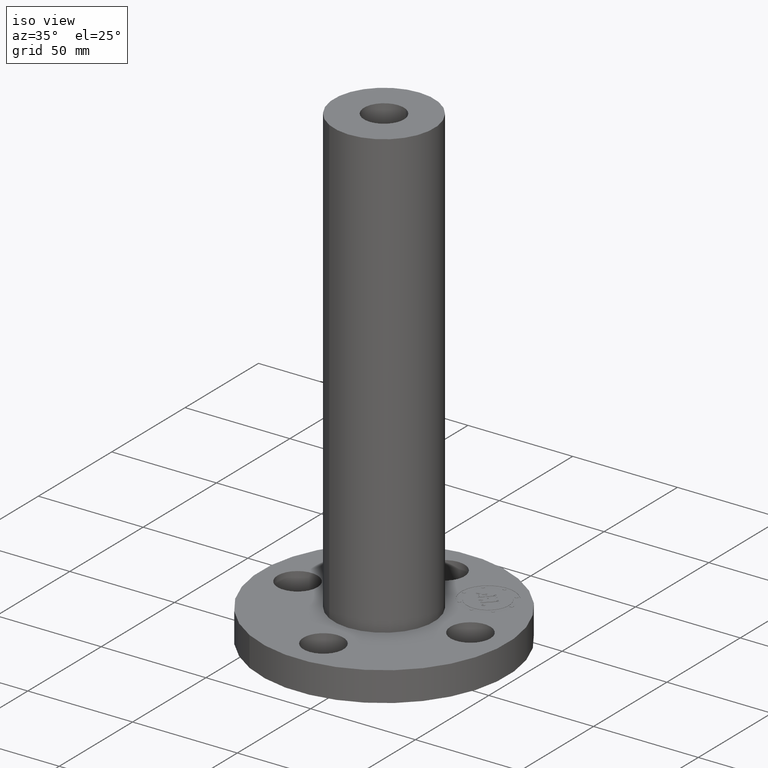
[diagram: clean part render]
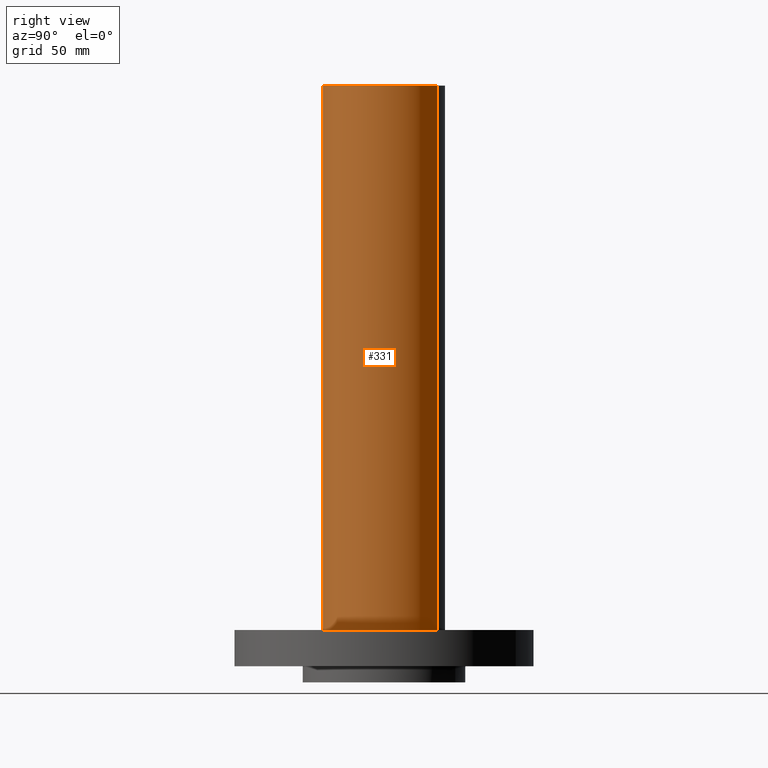
[diagram: tour spotlight — one face highlighted and labeled with its STEP entity id]
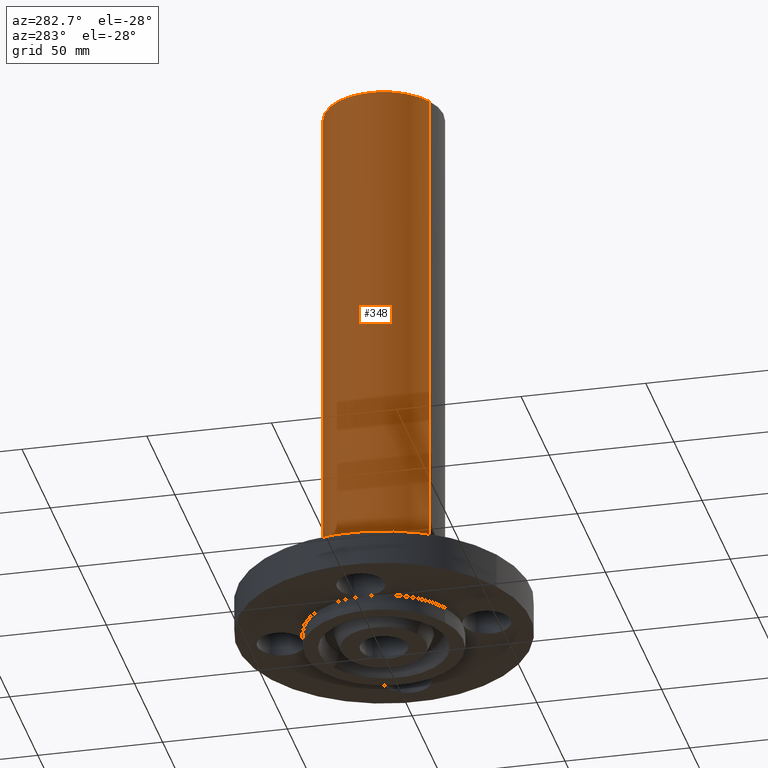
[diagram: tour spotlight — one face highlighted and labeled with its STEP entity id]
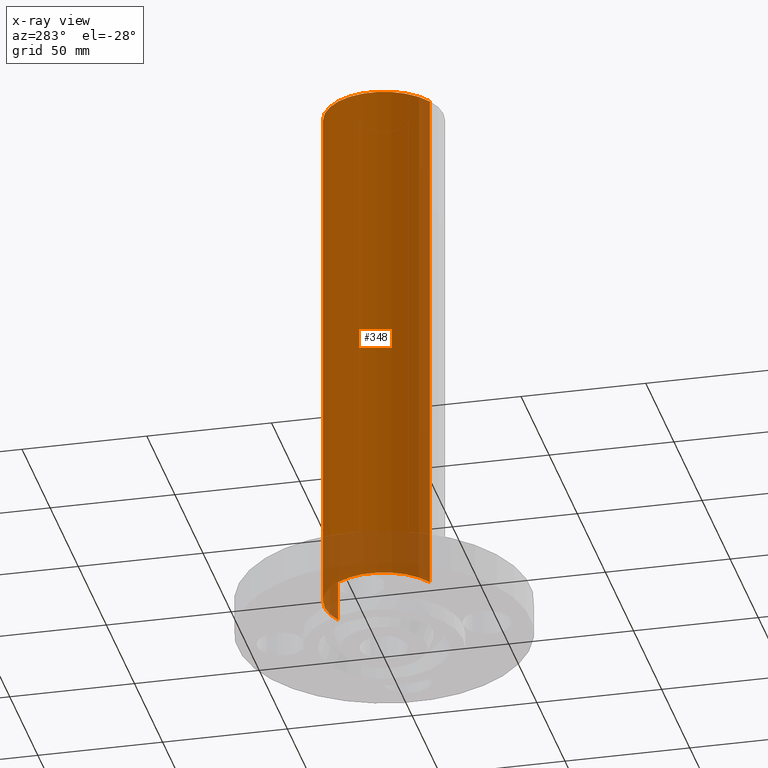
[diagram: x-ray of the same camera — body ghosted, this tour face saturated]
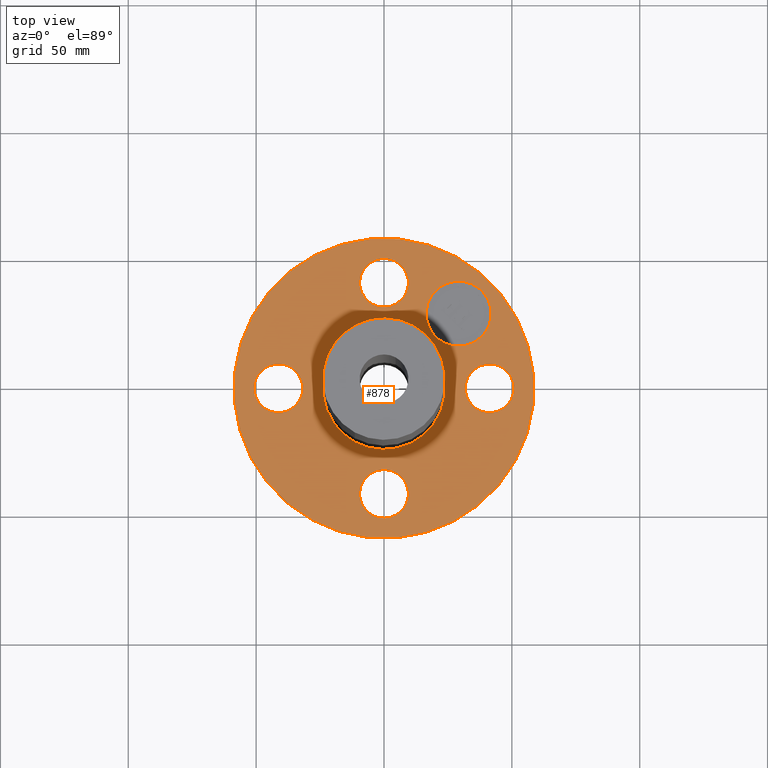
[diagram: tour spotlight — one face highlighted and labeled with its STEP entity id]
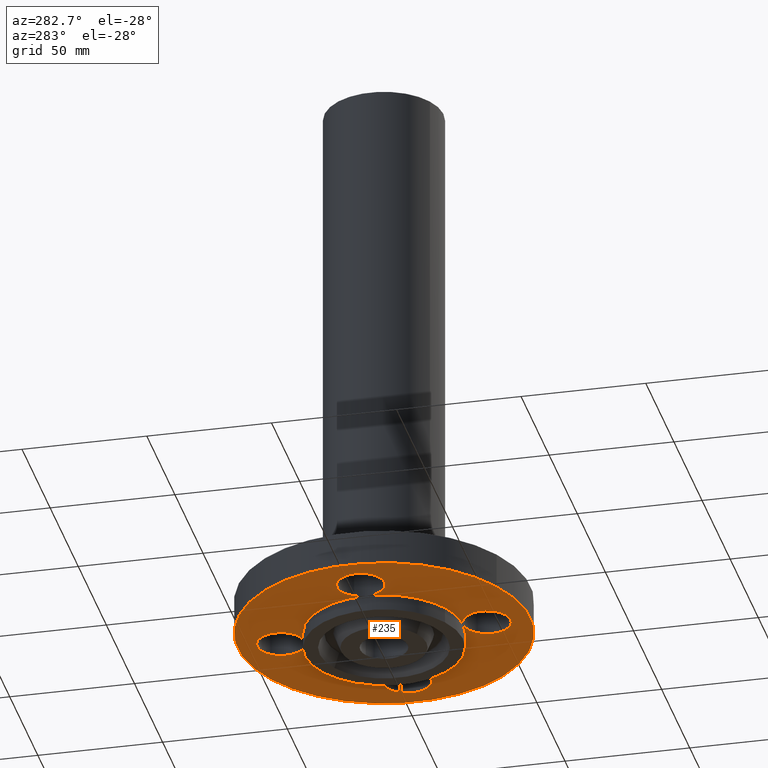
[diagram: tour spotlight — one face highlighted and labeled with its STEP entity id]
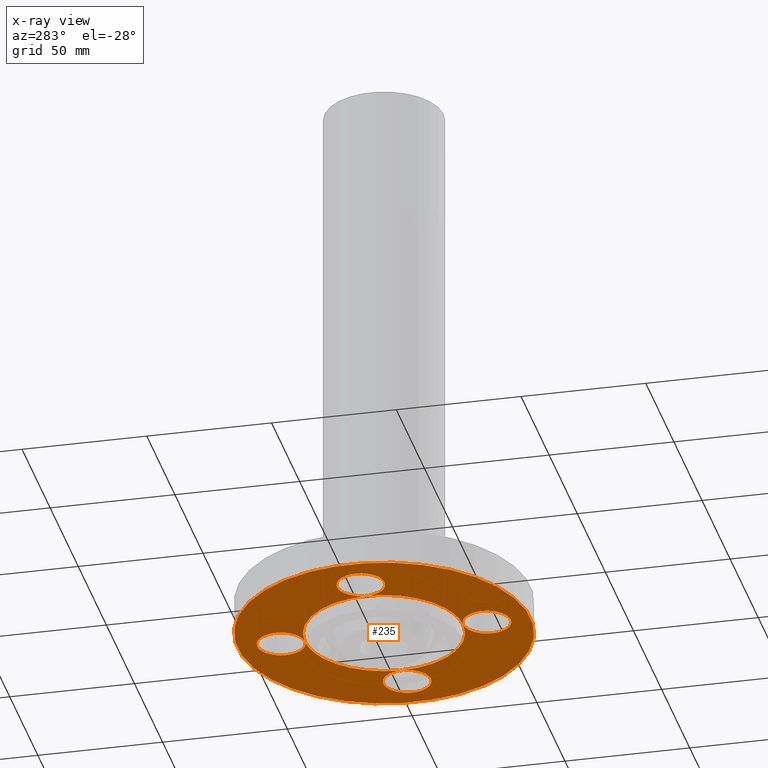
[diagram: x-ray of the same camera — body ghosted, this tour face saturated]
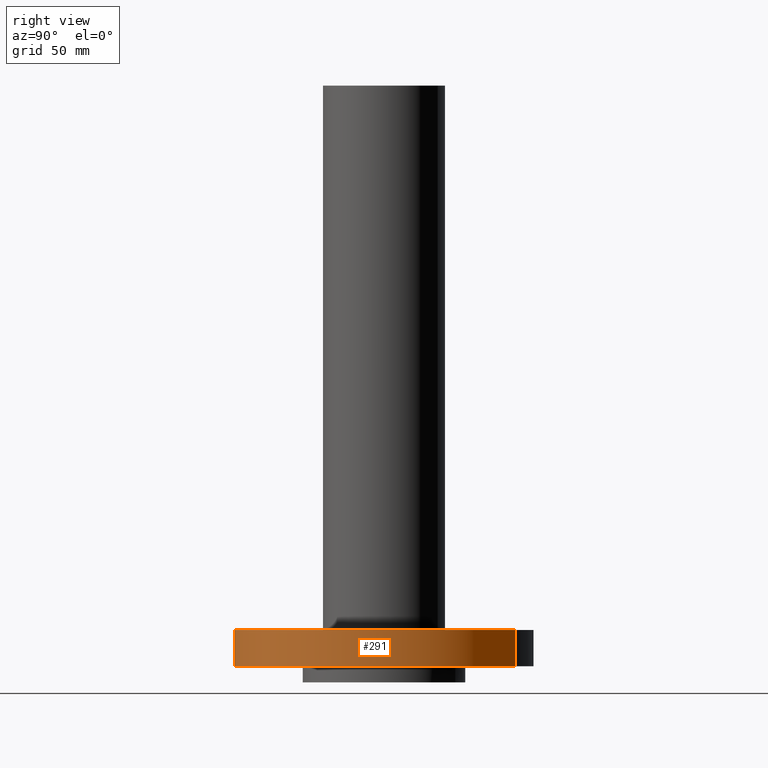
[diagram: tour spotlight — one face highlighted and labeled with its STEP entity id]
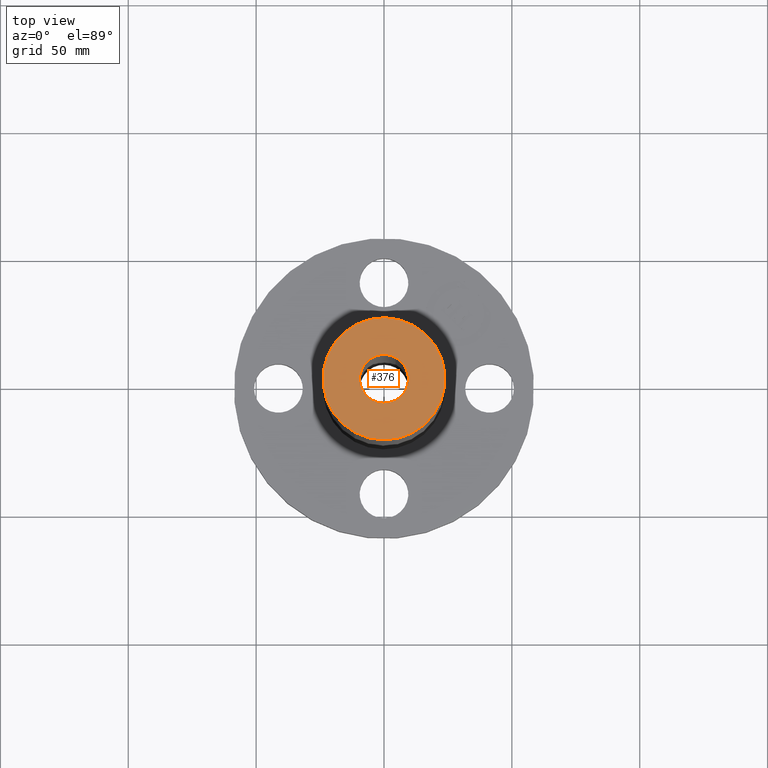
[diagram: tour spotlight — one face highlighted and labeled with its STEP entity id]
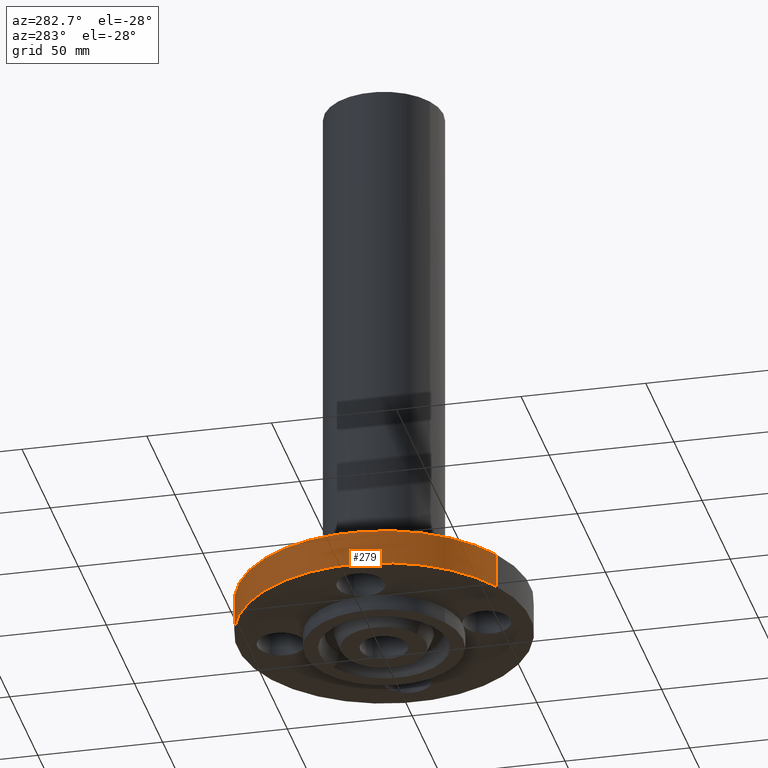
[diagram: tour spotlight — one face highlighted and labeled with its STEP entity id]
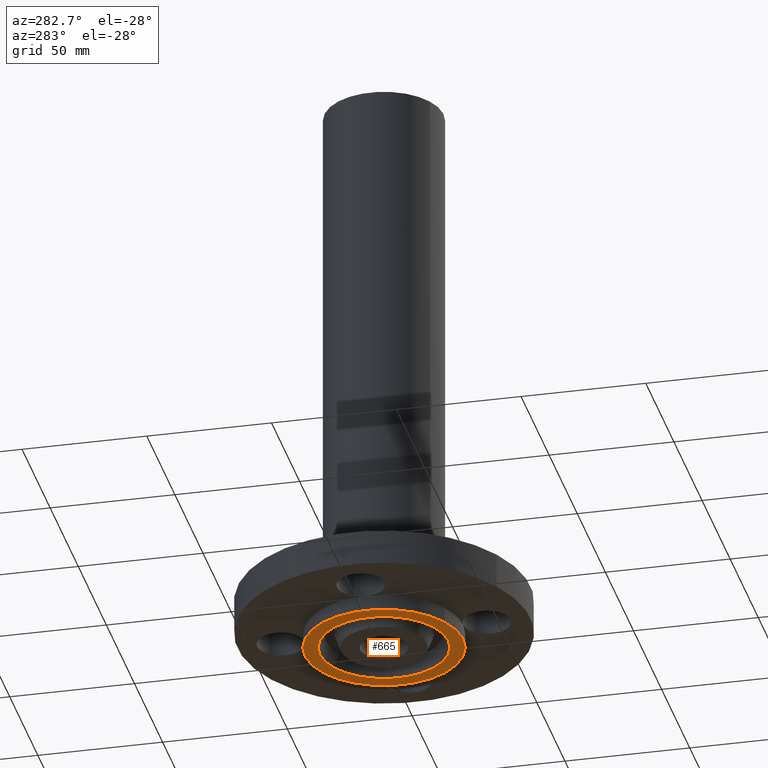
[diagram: tour spotlight — one face highlighted and labeled with its STEP entity id]
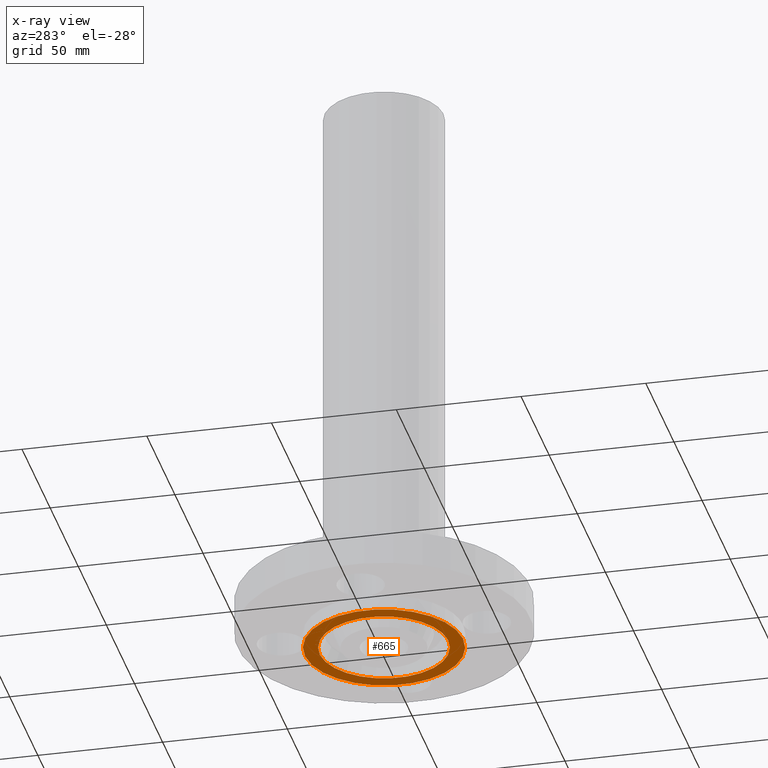
[diagram: x-ray of the same camera — body ghosted, this tour face saturated]
A machine part: a face-by-face anatomy tour. The part has 415 B-rep faces; the first image is the clean iso view, then the 8 largest visible faces are spotlighted one at a time (largest first), each with its STEP entity span.

Face 1 — right view, entity #331. In plain terms, the highlighted cylindrical surface (partial cylindrical patch) has radius 23.876 mm, axis along (0, 0, -1).
Definition (entity closure, byte-faithful):
#295=AXIS2_PLACEMENT_3D('Cylinder Axis2P3D',#292,#293,#294) ;
#299=AXIS2_PLACEMENT_3D('Circle Axis2P3D',#297,#298,$) ;
#315=AXIS2_PLACEMENT_3D('Circle Axis2P3D',#313,#314,$) ;
#292=CARTESIAN_POINT('Axis2P3D Location',(0.,0.,4.34375000002)) ;
#297=CARTESIAN_POINT('Axis2P3D Location',(0.,0.,0.557500000002)) ;
#301=CARTESIAN_POINT('Vertex',(0.45066000629,0.82492760818,0.557500000002)) ;
#303=CARTESIAN_POINT('Vertex',(-0.45066000629,-0.82492760818,0.557500000002)) ;
#306=CARTESIAN_POINT('Line Origine',(0.45066000629,0.82492760818,4.74750000002)) ;
#310=CARTESIAN_POINT('Vertex',(0.45066000629,0.82492760818,8.93750000004)) ;
#313=CARTESIAN_POINT('Axis2P3D Location',(0.,0.,8.93750000004)) ;
#317=CARTESIAN_POINT('Vertex',(-0.45066000629,-0.82492760818,8.93750000004)) ;
#320=CARTESIAN_POINT('Line Origine',(-0.45066000629,-0.82492760818,4.74750000002)) ;
#293=DIRECTION('Axis2P3D Direction',(0.,0.,-0.0393700787402)) ;
#294=DIRECTION('Axis2P3D XDirection',(-0.0188750212049,-0.0345504945626,0.)) ;
#298=DIRECTION('Axis2P3D Direction',(0.,0.,-0.0393700787402)) ;
#307=DIRECTION('Vector Direction',(0.,0.,-0.0393700787402)) ;
#314=DIRECTION('Axis2P3D Direction',(0.,0.,-0.0393700787402)) ;
#321=DIRECTION('Vector Direction',(0.,0.,-0.0393700787402)) ;
#308=VECTOR('Line Direction',#307,0.0393700787402) ;
#322=VECTOR('Line Direction',#321,0.0393700787402) ;
#326=ORIENTED_EDGE('',*,*,#305,.F.) ;
#327=ORIENTED_EDGE('',*,*,#312,.T.) ;
#328=ORIENTED_EDGE('',*,*,#319,.T.) ;
#329=ORIENTED_EDGE('',*,*,#324,.F.) ;
#331=ADVANCED_FACE('PartBody',(#330),#296,.T.) ;
#300=CIRCLE('generated circle',#299,0.940000000004) ;
#316=CIRCLE('generated circle',#315,0.940000000004) ;
#296=CYLINDRICAL_SURFACE('generated cylinder',#295,0.940000000004) ;
#305=EDGE_CURVE('',#302,#304,#300,.T.) ;
#312=EDGE_CURVE('',#302,#311,#309,.F.) ;
#319=EDGE_CURVE('',#311,#318,#316,.T.) ;
#324=EDGE_CURVE('',#304,#318,#323,.F.) ;
#325=EDGE_LOOP('',(#326,#327,#328,#329)) ;
#330=FACE_OUTER_BOUND('',#325,.T.) ;
#309=LINE('Line',#306,#308) ;
#323=LINE('Line',#320,#322) ;
#302=VERTEX_POINT('',#301) ;
#304=VERTEX_POINT('',#303) ;
#311=VERTEX_POINT('',#310) ;
#318=VERTEX_POINT('',#317) ;

Face 2 — auxiliary view, entity #348. An x-ray twin of the same camera follows (body ghosted, this face saturated) — the face is partly hidden behind the body. In plain terms, the highlighted cylindrical surface (partial cylindrical patch) has radius 23.876 mm, axis along (0, 0, -1).
Definition (entity closure, byte-faithful):
#295=AXIS2_PLACEMENT_3D('Cylinder Axis2P3D',#292,#293,#294) ;
#334=AXIS2_PLACEMENT_3D('Circle Axis2P3D',#332,#333,$) ;
#339=AXIS2_PLACEMENT_3D('Circle Axis2P3D',#337,#338,$) ;
#292=CARTESIAN_POINT('Axis2P3D Location',(0.,0.,4.34375000002)) ;
#301=CARTESIAN_POINT('Vertex',(0.45066000629,0.82492760818,0.557500000002)) ;
#303=CARTESIAN_POINT('Vertex',(-0.45066000629,-0.82492760818,0.557500000002)) ;
#306=CARTESIAN_POINT('Line Origine',(0.45066000629,0.82492760818,4.74750000002)) ;
#310=CARTESIAN_POINT('Vertex',(0.45066000629,0.82492760818,8.93750000004)) ;
#317=CARTESIAN_POINT('Vertex',(-0.45066000629,-0.82492760818,8.93750000004)) ;
#320=CARTESIAN_POINT('Line Origine',(-0.45066000629,-0.82492760818,4.74750000002)) ;
#332=CARTESIAN_POINT('Axis2P3D Location',(0.,0.,0.557500000002)) ;
#337=CARTESIAN_POINT('Axis2P3D Location',(0.,0.,8.93750000004)) ;
#293=DIRECTION('Axis2P3D Direction',(0.,0.,-0.0393700787402)) ;
#294=DIRECTION('Axis2P3D XDirection',(-0.0188750212049,-0.0345504945626,0.)) ;
#307=DIRECTION('Vector Direction',(0.,0.,-0.0393700787402)) ;
#321=DIRECTION('Vector Direction',(0.,0.,-0.0393700787402)) ;
#333=DIRECTION('Axis2P3D Direction',(0.,0.,-0.0393700787402)) ;
#338=DIRECTION('Axis2P3D Direction',(0.,0.,-0.0393700787402)) ;
#308=VECTOR('Line Direction',#307,0.0393700787402) ;
#322=VECTOR('Line Direction',#321,0.0393700787402) ;
#343=ORIENTED_EDGE('',*,*,#336,.F.) ;
#344=ORIENTED_EDGE('',*,*,#324,.T.) ;
#345=ORIENTED_EDGE('',*,*,#341,.T.) ;
#346=ORIENTED_EDGE('',*,*,#312,.F.) ;
#348=ADVANCED_FACE('PartBody',(#347),#296,.T.) ;
#335=CIRCLE('generated circle',#334,0.940000000004) ;
#340=CIRCLE('generated circle',#339,0.940000000004) ;
#296=CYLINDRICAL_SURFACE('generated cylinder',#295,0.940000000004) ;
#312=EDGE_CURVE('',#302,#311,#309,.F.) ;
#324=EDGE_CURVE('',#304,#318,#323,.F.) ;
#336=EDGE_CURVE('',#304,#302,#335,.T.) ;
#341=EDGE_CURVE('',#318,#311,#340,.T.) ;
#342=EDGE_LOOP('',(#343,#344,#345,#346)) ;
#347=FACE_OUTER_BOUND('',#342,.T.) ;
#309=LINE('Line',#306,#308) ;
#323=LINE('Line',#320,#322) ;
#302=VERTEX_POINT('',#301) ;
#304=VERTEX_POINT('',#303) ;
#311=VERTEX_POINT('',#310) ;
#318=VERTEX_POINT('',#317) ;

Face 3 — top view, entity #878. In plain terms, the highlighted planar face has unit normal (0, 0, -1).
Definition (entity closure, byte-faithful):
#51=AXIS2_PLACEMENT_3D('Circle Axis2P3D',#49,#50,$) ;
#238=AXIS2_PLACEMENT_3D('Circle Axis2P3D',#236,#237,$) ;
#263=AXIS2_PLACEMENT_3D('Circle Axis2P3D',#261,#262,$) ;
#282=AXIS2_PLACEMENT_3D('Circle Axis2P3D',#280,#281,$) ;
#299=AXIS2_PLACEMENT_3D('Circle Axis2P3D',#297,#298,$) ;
#334=AXIS2_PLACEMENT_3D('Circle Axis2P3D',#332,#333,$) ;
#713=AXIS2_PLACEMENT_3D('Circle Axis2P3D',#711,#712,$) ;
#732=AXIS2_PLACEMENT_3D('Circle Axis2P3D',#730,#731,$) ;
#757=AXIS2_PLACEMENT_3D('Circle Axis2P3D',#755,#756,$) ;
#776=AXIS2_PLACEMENT_3D('Circle Axis2P3D',#774,#775,$) ;
#801=AXIS2_PLACEMENT_3D('Circle Axis2P3D',#799,#800,$) ;
#820=AXIS2_PLACEMENT_3D('Circle Axis2P3D',#818,#819,$) ;
#834=AXIS2_PLACEMENT_3D('Plane Axis2P3D',#831,#832,#833) ;
#862=AXIS2_PLACEMENT_3D('Circle Axis2P3D',#860,#861,$) ;
#871=AXIS2_PLACEMENT_3D('Circle Axis2P3D',#869,#870,$) ;
#44=CARTESIAN_POINT('Vertex',(1.2959065393,-0.179784576977,0.557500000002)) ;
#49=CARTESIAN_POINT('Axis2P3D Location',(1.62500000001,0.,0.557500000002)) ;
#53=CARTESIAN_POINT('Vertex',(1.95409346072,0.179784576977,0.557500000002)) ;
#236=CARTESIAN_POINT('Axis2P3D Location',(1.62500000001,0.,0.557500000002)) ;
#258=CARTESIAN_POINT('Vertex',(-1.10747299418,-2.02721571797,0.557500000002)) ;
#261=CARTESIAN_POINT('Axis2P3D Location',(0.,0.,0.557500000002)) ;
#265=CARTESIAN_POINT('Vertex',(1.10747299418,2.02721571797,0.557500000002)) ;
#280=CARTESIAN_POINT('Axis2P3D Location',(0.,0.,0.557500000002)) ;
#297=CARTESIAN_POINT('Axis2P3D Location',(0.,0.,0.557500000002)) ;
#301=CARTESIAN_POINT('Vertex',(0.45066000629,0.82492760818,0.557500000002)) ;
#303=CARTESIAN_POINT('Vertex',(-0.45066000629,-0.82492760818,0.557500000002)) ;
#332=CARTESIAN_POINT('Axis2P3D Location',(0.,0.,0.557500000002)) ;
#708=CARTESIAN_POINT('Vertex',(-0.179784576977,-1.2959065393,0.557500000002)) ;
#711=CARTESIAN_POINT('Axis2P3D Location',(-2.61319930573E-016,-1.62500000001,0.557500000002)) ;
#715=CARTESIAN_POINT('Vertex',(0.179784576977,-1.95409346072,0.557500000002)) ;
#730=CARTESIAN_POINT('Axis2P3D Location',(-2.61319930573E-016,-1.62500000001,0.557500000002)) ;
#752=CARTESIAN_POINT('Vertex',(-1.2959065393,0.179784576977,0.557500000002)) ;
#755=CARTESIAN_POINT('Axis2P3D Location',(-1.62500000001,5.22639861147E-016,0.557500000002)) ;
#759=CARTESIAN_POINT('Vertex',(-1.95409346072,-0.179784576977,0.557500000002)) ;
#774=CARTESIAN_POINT('Axis2P3D Location',(-1.62500000001,5.22639861147E-016,0.557500000002)) ;
#796=CARTESIAN_POINT('Vertex',(0.179784576977,1.2959065393,0.557500000002)) ;
#799=CARTESIAN_POINT('Axis2P3D Location',(1.14478227473E-015,1.62500000001,0.557500000002)) ;
#803=CARTESIAN_POINT('Vertex',(-0.179784576977,1.95409346072,0.557500000002)) ;
#818=CARTESIAN_POINT('Axis2P3D Location',(1.14478227473E-015,1.62500000001,0.557500000002)) ;
#831=CARTESIAN_POINT('Axis2P3D Location',(0.,2.31000000001,0.557500000002)) ;
#860=CARTESIAN_POINT('Axis2P3D Location',(1.14904851943,1.14904851943,0.557500000002)) ;
#864=CARTESIAN_POINT('Vertex',(1.50260190649,0.795495132374,0.557500000002)) ;
#866=CARTESIAN_POINT('Vertex',(0.795495132374,1.50260190649,0.557500000002)) ;
#869=CARTESIAN_POINT('Axis2P3D Location',(1.14904851943,1.14904851943,0.557500000002)) ;
#50=DIRECTION('Axis2P3D Direction',(0.,-0.,0.0393700787402)) ;
#237=DIRECTION('Axis2P3D Direction',(0.,-0.,0.0393700787402)) ;
#262=DIRECTION('Axis2P3D Direction',(0.,0.,-0.0393700787402)) ;
#281=DIRECTION('Axis2P3D Direction',(0.,0.,-0.0393700787402)) ;
#298=DIRECTION('Axis2P3D Direction',(0.,0.,-0.0393700787402)) ;
#333=DIRECTION('Axis2P3D Direction',(0.,0.,-0.0393700787402)) ;
#712=DIRECTION('Axis2P3D Direction',(0.,0.,0.0393700787402)) ;
#731=DIRECTION('Axis2P3D Direction',(0.,0.,0.0393700787402)) ;
#756=DIRECTION('Axis2P3D Direction',(0.,0.,0.0393700787402)) ;
#775=DIRECTION('Axis2P3D Direction',(0.,0.,0.0393700787402)) ;
#800=DIRECTION('Axis2P3D Direction',(0.,-0.,0.0393700787402)) ;
#819=DIRECTION('Axis2P3D Direction',(0.,-0.,0.0393700787402)) ;
#832=DIRECTION('Axis2P3D Direction',(0.,0.,-0.0393700787402)) ;
#833=DIRECTION('Axis2P3D XDirection',(0.0393700787402,0.,0.)) ;
#861=DIRECTION('Axis2P3D Direction',(0.,0.,-0.0393700787402)) ;
#870=DIRECTION('Axis2P3D Direction',(0.,0.,-0.0393700787402)) ;
#837=ORIENTED_EDGE('',*,*,#284,.F.) ;
#838=ORIENTED_EDGE('',*,*,#267,.F.) ;
#841=ORIENTED_EDGE('',*,*,#55,.T.) ;
#842=ORIENTED_EDGE('',*,*,#240,.T.) ;
#845=ORIENTED_EDGE('',*,*,#336,.T.) ;
#846=ORIENTED_EDGE('',*,*,#305,.T.) ;
#849=ORIENTED_EDGE('',*,*,#734,.T.) ;
#850=ORIENTED_EDGE('',*,*,#717,.T.) ;
#853=ORIENTED_EDGE('',*,*,#778,.T.) ;
#854=ORIENTED_EDGE('',*,*,#761,.T.) ;
#857=ORIENTED_EDGE('',*,*,#822,.T.) ;
#858=ORIENTED_EDGE('',*,*,#805,.T.) ;
#875=ORIENTED_EDGE('',*,*,#868,.F.) ;
#876=ORIENTED_EDGE('',*,*,#873,.F.) ;
#843=FACE_BOUND('',#840,.T.) ;
#847=FACE_BOUND('',#844,.T.) ;
#851=FACE_BOUND('',#848,.T.) ;
#855=FACE_BOUND('',#852,.T.) ;
#859=FACE_BOUND('',#856,.T.) ;
#877=FACE_BOUND('',#874,.T.) ;
#878=ADVANCED_FACE('PartBody',(#839,#843,#847,#851,#855,#859,#877),#835,.F.) ;
#52=CIRCLE('generated circle',#51,0.375000000001) ;
#239=CIRCLE('generated circle',#238,0.375000000001) ;
#264=CIRCLE('generated circle',#263,2.31000000001) ;
#283=CIRCLE('generated circle',#282,2.31000000001) ;
#300=CIRCLE('generated circle',#299,0.940000000004) ;
#335=CIRCLE('generated circle',#334,0.940000000004) ;
#714=CIRCLE('generated circle',#713,0.375000000001) ;
#733=CIRCLE('generated circle',#732,0.375000000001) ;
#758=CIRCLE('generated circle',#757,0.375000000002) ;
#777=CIRCLE('generated circle',#776,0.375000000002) ;
#802=CIRCLE('generated circle',#801,0.375000000001) ;
#821=CIRCLE('generated circle',#820,0.375000000001) ;
#863=CIRCLE('generated circle',#862,0.499999995002) ;
#872=CIRCLE('generated circle',#871,0.499999995002) ;
#55=EDGE_CURVE('',#54,#45,#52,.F.) ;
#240=EDGE_CURVE('',#45,#54,#239,.F.) ;
#267=EDGE_CURVE('',#259,#266,#264,.T.) ;
#284=EDGE_CURVE('',#266,#259,#283,.T.) ;
#305=EDGE_CURVE('',#302,#304,#300,.T.) ;
#336=EDGE_CURVE('',#304,#302,#335,.T.) ;
#717=EDGE_CURVE('',#716,#709,#714,.F.) ;
#734=EDGE_CURVE('',#709,#716,#733,.F.) ;
#761=EDGE_CURVE('',#760,#753,#758,.F.) ;
#778=EDGE_CURVE('',#753,#760,#777,.F.) ;
#805=EDGE_CURVE('',#804,#797,#802,.F.) ;
#822=EDGE_CURVE('',#797,#804,#821,.F.) ;
#868=EDGE_CURVE('',#865,#867,#863,.F.) ;
#873=EDGE_CURVE('',#867,#865,#872,.F.) ;
#836=EDGE_LOOP('',(#837,#838)) ;
#840=EDGE_LOOP('',(#841,#842)) ;
#844=EDGE_LOOP('',(#845,#846)) ;
#848=EDGE_LOOP('',(#849,#850)) ;
#852=EDGE_LOOP('',(#853,#854)) ;
#856=EDGE_LOOP('',(#857,#858)) ;
#874=EDGE_LOOP('',(#875,#876)) ;
#839=FACE_OUTER_BOUND('',#836,.T.) ;
#835=PLANE('',#834) ;
#45=VERTEX_POINT('',#44) ;
#54=VERTEX_POINT('',#53) ;
#259=VERTEX_POINT('',#258) ;
#266=VERTEX_POINT('',#265) ;
#302=VERTEX_POINT('',#301) ;
#304=VERTEX_POINT('',#303) ;
#709=VERTEX_POINT('',#708) ;
#716=VERTEX_POINT('',#715) ;
#753=VERTEX_POINT('',#752) ;
#760=VERTEX_POINT('',#759) ;
#797=VERTEX_POINT('',#796) ;
#804=VERTEX_POINT('',#803) ;
#865=VERTEX_POINT('',#864) ;
#867=VERTEX_POINT('',#866) ;

Face 4 — auxiliary view, entity #235. An x-ray twin of the same camera follows (body ghosted, this face saturated) — the face is partly hidden behind the body. In plain terms, the highlighted planar face has unit normal (0, 0, -1).
Definition (entity closure, byte-faithful):
#65=AXIS2_PLACEMENT_3D('Circle Axis2P3D',#63,#64,$) ;
#78=AXIS2_PLACEMENT_3D('Plane Axis2P3D',#75,#76,#77) ;
#82=AXIS2_PLACEMENT_3D('Circle Axis2P3D',#80,#81,$) ;
#91=AXIS2_PLACEMENT_3D('Circle Axis2P3D',#89,#90,$) ;
#100=AXIS2_PLACEMENT_3D('Circle Axis2P3D',#98,#99,$) ;
#109=AXIS2_PLACEMENT_3D('Circle Axis2P3D',#107,#108,$) ;
#116=AXIS2_PLACEMENT_3D('Circle Axis2P3D',#114,#115,$) ;
#126=AXIS2_PLACEMENT_3D('Circle Axis2P3D',#124,#125,$) ;
#133=AXIS2_PLACEMENT_3D('Circle Axis2P3D',#131,#132,$) ;
#140=AXIS2_PLACEMENT_3D('Circle Axis2P3D',#138,#139,$) ;
#147=AXIS2_PLACEMENT_3D('Circle Axis2P3D',#145,#146,$) ;
#154=AXIS2_PLACEMENT_3D('Circle Axis2P3D',#152,#153,$) ;
#161=AXIS2_PLACEMENT_3D('Circle Axis2P3D',#159,#160,$) ;
#174=AXIS2_PLACEMENT_3D('Circle Axis2P3D',#172,#173,$) ;
#181=AXIS2_PLACEMENT_3D('Circle Axis2P3D',#179,#180,$) ;
#188=AXIS2_PLACEMENT_3D('Circle Axis2P3D',#186,#187,$) ;
#198=AXIS2_PLACEMENT_3D('Circle Axis2P3D',#196,#197,$) ;
#203=AXIS2_PLACEMENT_3D('Circle Axis2P3D',#201,#202,$) ;
#213=AXIS2_PLACEMENT_3D('Circle Axis2P3D',#211,#212,$) ;
#220=AXIS2_PLACEMENT_3D('Circle Axis2P3D',#218,#219,$) ;
#227=AXIS2_PLACEMENT_3D('Circle Axis2P3D',#225,#226,$) ;
#46=CARTESIAN_POINT('Vertex',(1.2959065393,-0.179784576977,2.2401153548E-016)) ;
#60=CARTESIAN_POINT('Vertex',(1.95409346072,0.179784576977,2.2401153548E-016)) ;
#63=CARTESIAN_POINT('Axis2P3D Location',(1.62500000001,0.,0.)) ;
#75=CARTESIAN_POINT('Axis2P3D Location',(0.,0.798637156453,0.)) ;
#80=CARTESIAN_POINT('Axis2P3D Location',(0.,0.,0.)) ;
#84=CARTESIAN_POINT('Vertex',(-1.10747299418,-2.02721571797,-5.59482469102E-016)) ;
#86=CARTESIAN_POINT('Vertex',(1.10747299418,2.02721571797,-5.59482469102E-016)) ;
#89=CARTESIAN_POINT('Axis2P3D Location',(0.,0.,0.)) ;
#98=CARTESIAN_POINT('Axis2P3D Location',(-1.62500000001,2.79741234551E-016,0.)) ;
#102=CARTESIAN_POINT('Vertex',(-1.2959065393,0.179784576977,0.)) ;
#104=CARTESIAN_POINT('Vertex',(-1.25000000001,0.,0.)) ;
#107=CARTESIAN_POINT('Axis2P3D Location',(-1.62500000001,6.99353086378E-016,0.)) ;
#111=CARTESIAN_POINT('Vertex',(-1.95409346072,-0.179784576977,2.2401153548E-016)) ;
#114=CARTESIAN_POINT('Axis2P3D Location',(-1.62500000001,2.79741234551E-016,0.)) ;
#124=CARTESIAN_POINT('Axis2P3D Location',(0.,0.,0.)) ;
#128=CARTESIAN_POINT('Vertex',(-0.599281923258,-1.09697820237,0.)) ;
#131=CARTESIAN_POINT('Axis2P3D Location',(0.,0.,0.)) ;
#135=CARTESIAN_POINT('Vertex',(-1.73789345409E-016,-1.25000000001,0.)) ;
#138=CARTESIAN_POINT('Axis2P3D Location',(0.,0.,0.)) ;
#142=CARTESIAN_POINT('Vertex',(1.25000000001,-1.91428434947E-015,0.)) ;
#145=CARTESIAN_POINT('Axis2P3D Location',(0.,0.,0.)) ;
#149=CARTESIAN_POINT('Vertex',(0.599281923258,1.09697820237,0.)) ;
#152=CARTESIAN_POINT('Axis2P3D Location',(0.,0.,0.)) ;
#156=CARTESIAN_POINT('Vertex',(7.87223922191E-016,1.25000000001,0.)) ;
#159=CARTESIAN_POINT('Axis2P3D Location',(0.,0.,0.)) ;
#172=CARTESIAN_POINT('Axis2P3D Location',(-1.04902962957E-016,-1.62500000001,0.)) ;
#176=CARTESIAN_POINT('Vertex',(-0.179784576977,-1.2959065393,0.)) ;
#179=CARTESIAN_POINT('Axis2P3D Location',(-2.79741234551E-016,-1.62500000001,0.)) ;
#183=CARTESIAN_POINT('Vertex',(0.179784576977,-1.95409346072,2.2401153548E-016)) ;
#186=CARTESIAN_POINT('Axis2P3D Location',(-1.04902962957E-016,-1.62500000001,0.)) ;
#196=CARTESIAN_POINT('Axis2P3D Location',(1.62500000001,0.,0.)) ;
#201=CARTESIAN_POINT('Axis2P3D Location',(1.62500000001,0.,0.)) ;
#211=CARTESIAN_POINT('Axis2P3D Location',(1.01406197525E-015,1.62500000001,0.)) ;
#215=CARTESIAN_POINT('Vertex',(0.179784576977,1.2959065393,0.)) ;
#218=CARTESIAN_POINT('Axis2P3D Location',(1.1189649382E-015,1.62500000001,0.)) ;
#222=CARTESIAN_POINT('Vertex',(-0.179784576977,1.95409346072,2.2401153548E-016)) ;
#225=CARTESIAN_POINT('Axis2P3D Location',(1.01406197525E-015,1.62500000001,0.)) ;
#64=DIRECTION('Axis2P3D Direction',(0.,-0.,0.0393700787402)) ;
#76=DIRECTION('Axis2P3D Direction',(0.,0.,-0.0393700787402)) ;
#77=DIRECTION('Axis2P3D XDirection',(0.0393700787402,0.,0.)) ;
#81=DIRECTION('Axis2P3D Direction',(0.,0.,-0.0393700787402)) ;
#90=DIRECTION('Axis2P3D Direction',(0.,0.,-0.0393700787402)) ;
#99=DIRECTION('Axis2P3D Direction',(0.,0.,-0.0393700787402)) ;
#108=DIRECTION('Axis2P3D Direction',(0.,0.,-0.0393700787402)) ;
#115=DIRECTION('Axis2P3D Direction',(0.,0.,-0.0393700787402)) ;
#125=DIRECTION('Axis2P3D Direction',(0.,0.,-0.0393700787402)) ;
#132=DIRECTION('Axis2P3D Direction',(0.,0.,-0.0393700787402)) ;
#139=DIRECTION('Axis2P3D Direction',(0.,0.,-0.0393700787402)) ;
#146=DIRECTION('Axis2P3D Direction',(0.,0.,-0.0393700787402)) ;
#153=DIRECTION('Axis2P3D Direction',(0.,0.,-0.0393700787402)) ;
#160=DIRECTION('Axis2P3D Direction',(0.,0.,-0.0393700787402)) ;
#173=DIRECTION('Axis2P3D Direction',(0.,0.,-0.0393700787402)) ;
#180=DIRECTION('Axis2P3D Direction',(0.,0.,-0.0393700787402)) ;
#187=DIRECTION('Axis2P3D Direction',(0.,0.,-0.0393700787402)) ;
#197=DIRECTION('Axis2P3D Direction',(0.,0.,-0.0393700787402)) ;
#202=DIRECTION('Axis2P3D Direction',(0.,0.,-0.0393700787402)) ;
#212=DIRECTION('Axis2P3D Direction',(0.,0.,-0.0393700787402)) ;
#219=DIRECTION('Axis2P3D Direction',(0.,0.,-0.0393700787402)) ;
#226=DIRECTION('Axis2P3D Direction',(0.,0.,-0.0393700787402)) ;
#95=ORIENTED_EDGE('',*,*,#88,.T.) ;
#96=ORIENTED_EDGE('',*,*,#93,.T.) ;
#120=ORIENTED_EDGE('',*,*,#106,.F.) ;
#121=ORIENTED_EDGE('',*,*,#113,.F.) ;
#122=ORIENTED_EDGE('',*,*,#118,.F.) ;
#165=ORIENTED_EDGE('',*,*,#130,.F.) ;
#166=ORIENTED_EDGE('',*,*,#137,.F.) ;
#167=ORIENTED_EDGE('',*,*,#144,.F.) ;
#168=ORIENTED_EDGE('',*,*,#151,.F.) ;
#169=ORIENTED_EDGE('',*,*,#158,.F.) ;
#170=ORIENTED_EDGE('',*,*,#163,.F.) ;
#192=ORIENTED_EDGE('',*,*,#178,.F.) ;
#193=ORIENTED_EDGE('',*,*,#185,.F.) ;
#194=ORIENTED_EDGE('',*,*,#190,.F.) ;
#207=ORIENTED_EDGE('',*,*,#200,.F.) ;
#208=ORIENTED_EDGE('',*,*,#67,.F.) ;
#209=ORIENTED_EDGE('',*,*,#205,.F.) ;
#231=ORIENTED_EDGE('',*,*,#217,.F.) ;
#232=ORIENTED_EDGE('',*,*,#224,.F.) ;
#233=ORIENTED_EDGE('',*,*,#229,.F.) ;
#123=FACE_BOUND('',#119,.T.) ;
#171=FACE_BOUND('',#164,.T.) ;
#195=FACE_BOUND('',#191,.T.) ;
#210=FACE_BOUND('',#206,.T.) ;
#234=FACE_BOUND('',#230,.T.) ;
#235=ADVANCED_FACE('PartBody',(#97,#123,#171,#195,#210,#234),#79,.T.) ;
#66=CIRCLE('generated circle',#65,0.375000000001) ;
#83=CIRCLE('generated circle',#82,2.31000000001) ;
#92=CIRCLE('generated circle',#91,2.31000000001) ;
#101=CIRCLE('generated circle',#100,0.375000000002) ;
#110=CIRCLE('generated circle',#109,0.375000000002) ;
#117=CIRCLE('generated circle',#116,0.375000000002) ;
#127=CIRCLE('generated circle',#126,1.25000000001) ;
#134=CIRCLE('generated circle',#133,1.25000000001) ;
#141=CIRCLE('generated circle',#140,1.25000000001) ;
#148=CIRCLE('generated circle',#147,1.25000000001) ;
#155=CIRCLE('generated circle',#154,1.25000000001) ;
#162=CIRCLE('generated circle',#161,1.25000000001) ;
#175=CIRCLE('generated circle',#174,0.375000000001) ;
#182=CIRCLE('generated circle',#181,0.375000000001) ;
#189=CIRCLE('generated circle',#188,0.375000000001) ;
#199=CIRCLE('generated circle',#198,0.375000000001) ;
#204=CIRCLE('generated circle',#203,0.375000000001) ;
#214=CIRCLE('generated circle',#213,0.375000000001) ;
#221=CIRCLE('generated circle',#220,0.375000000001) ;
#228=CIRCLE('generated circle',#227,0.375000000001) ;
#67=EDGE_CURVE('',#61,#47,#66,.F.) ;
#88=EDGE_CURVE('',#85,#87,#83,.T.) ;
#93=EDGE_CURVE('',#87,#85,#92,.T.) ;
#106=EDGE_CURVE('',#103,#105,#101,.T.) ;
#113=EDGE_CURVE('',#112,#103,#110,.T.) ;
#118=EDGE_CURVE('',#105,#112,#117,.T.) ;
#130=EDGE_CURVE('',#129,#105,#127,.T.) ;
#137=EDGE_CURVE('',#136,#129,#134,.T.) ;
#144=EDGE_CURVE('',#143,#136,#141,.T.) ;
#151=EDGE_CURVE('',#150,#143,#148,.T.) ;
#158=EDGE_CURVE('',#157,#150,#155,.T.) ;
#163=EDGE_CURVE('',#105,#157,#162,.T.) ;
#178=EDGE_CURVE('',#177,#136,#175,.T.) ;
#185=EDGE_CURVE('',#184,#177,#182,.T.) ;
#190=EDGE_CURVE('',#136,#184,#189,.T.) ;
#200=EDGE_CURVE('',#47,#143,#199,.T.) ;
#205=EDGE_CURVE('',#143,#61,#204,.T.) ;
#217=EDGE_CURVE('',#216,#157,#214,.T.) ;
#224=EDGE_CURVE('',#223,#216,#221,.T.) ;
#229=EDGE_CURVE('',#157,#223,#228,.T.) ;
#94=EDGE_LOOP('',(#95,#96)) ;
#119=EDGE_LOOP('',(#120,#121,#122)) ;
#164=EDGE_LOOP('',(#165,#166,#167,#168,#169,#170)) ;
#191=EDGE_LOOP('',(#192,#193,#194)) ;
#206=EDGE_LOOP('',(#207,#208,#209)) ;
#230=EDGE_LOOP('',(#231,#232,#233)) ;
#97=FACE_OUTER_BOUND('',#94,.T.) ;
#79=PLANE('',#78) ;
#47=VERTEX_POINT('',#46) ;
#61=VERTEX_POINT('',#60) ;
#85=VERTEX_POINT('',#84) ;
#87=VERTEX_POINT('',#86) ;
#103=VERTEX_POINT('',#102) ;
#105=VERTEX_POINT('',#104) ;
#112=VERTEX_POINT('',#111) ;
#129=VERTEX_POINT('',#128) ;
#136=VERTEX_POINT('',#135) ;
#143=VERTEX_POINT('',#142) ;
#150=VERTEX_POINT('',#149) ;
#157=VERTEX_POINT('',#156) ;
#177=VERTEX_POINT('',#176) ;
#184=VERTEX_POINT('',#183) ;
#216=VERTEX_POINT('',#215) ;
#223=VERTEX_POINT('',#222) ;

Face 5 — right view, entity #291. In plain terms, the highlighted cylindrical surface (partial cylindrical patch) has radius 58.674 mm, axis along (0, 0, -1).
Definition (entity closure, byte-faithful):
#91=AXIS2_PLACEMENT_3D('Circle Axis2P3D',#89,#90,$) ;
#252=AXIS2_PLACEMENT_3D('Cylinder Axis2P3D',#249,#250,#251) ;
#282=AXIS2_PLACEMENT_3D('Circle Axis2P3D',#280,#281,$) ;
#84=CARTESIAN_POINT('Vertex',(-1.10747299418,-2.02721571797,-5.59482469102E-016)) ;
#86=CARTESIAN_POINT('Vertex',(1.10747299418,2.02721571797,-5.59482469102E-016)) ;
#89=CARTESIAN_POINT('Axis2P3D Location',(0.,0.,0.)) ;
#249=CARTESIAN_POINT('Axis2P3D Location',(0.,0.,4.34375000002)) ;
#254=CARTESIAN_POINT('Line Origine',(-1.10747299418,-2.02721571797,0.278750000001)) ;
#258=CARTESIAN_POINT('Vertex',(-1.10747299418,-2.02721571797,0.557500000002)) ;
#265=CARTESIAN_POINT('Vertex',(1.10747299418,2.02721571797,0.557500000002)) ;
#268=CARTESIAN_POINT('Line Origine',(1.10747299418,2.02721571797,0.278750000001)) ;
#280=CARTESIAN_POINT('Axis2P3D Location',(0.,0.,0.557500000002)) ;
#90=DIRECTION('Axis2P3D Direction',(0.,0.,-0.0393700787402)) ;
#250=DIRECTION('Axis2P3D Direction',(0.,0.,-0.0393700787402)) ;
#251=DIRECTION('Axis2P3D XDirection',(0.0188750212049,0.0345504945626,0.)) ;
#255=DIRECTION('Vector Direction',(0.,0.,-0.0393700787402)) ;
#269=DIRECTION('Vector Direction',(0.,0.,-0.0393700787402)) ;
#281=DIRECTION('Axis2P3D Direction',(0.,0.,-0.0393700787402)) ;
#256=VECTOR('Line Direction',#255,0.0393700787402) ;
#270=VECTOR('Line Direction',#269,0.0393700787402) ;
#286=ORIENTED_EDGE('',*,*,#93,.F.) ;
#287=ORIENTED_EDGE('',*,*,#272,.T.) ;
#288=ORIENTED_EDGE('',*,*,#284,.T.) ;
#289=ORIENTED_EDGE('',*,*,#260,.F.) ;
#291=ADVANCED_FACE('PartBody',(#290),#253,.T.) ;
#92=CIRCLE('generated circle',#91,2.31000000001) ;
#283=CIRCLE('generated circle',#282,2.31000000001) ;
#253=CYLINDRICAL_SURFACE('generated cylinder',#252,2.31000000001) ;
#93=EDGE_CURVE('',#87,#85,#92,.T.) ;
#260=EDGE_CURVE('',#85,#259,#257,.F.) ;
#272=EDGE_CURVE('',#87,#266,#271,.F.) ;
#284=EDGE_CURVE('',#266,#259,#283,.T.) ;
#285=EDGE_LOOP('',(#286,#287,#288,#289)) ;
#290=FACE_OUTER_BOUND('',#285,.T.) ;
#257=LINE('Line',#254,#256) ;
#271=LINE('Line',#268,#270) ;
#85=VERTEX_POINT('',#84) ;
#87=VERTEX_POINT('',#86) ;
#259=VERTEX_POINT('',#258) ;
#266=VERTEX_POINT('',#265) ;

Face 6 — top view, entity #376. In plain terms, the highlighted planar face has unit normal (0, 0, -1).
Definition (entity closure, byte-faithful):
#315=AXIS2_PLACEMENT_3D('Circle Axis2P3D',#313,#314,$) ;
#339=AXIS2_PLACEMENT_3D('Circle Axis2P3D',#337,#338,$) ;
#352=AXIS2_PLACEMENT_3D('Plane Axis2P3D',#349,#350,#351) ;
#360=AXIS2_PLACEMENT_3D('Circle Axis2P3D',#358,#359,$) ;
#369=AXIS2_PLACEMENT_3D('Circle Axis2P3D',#367,#368,$) ;
#310=CARTESIAN_POINT('Vertex',(0.45066000629,0.82492760818,8.93750000004)) ;
#313=CARTESIAN_POINT('Axis2P3D Location',(0.,0.,8.93750000004)) ;
#317=CARTESIAN_POINT('Vertex',(-0.45066000629,-0.82492760818,8.93750000004)) ;
#337=CARTESIAN_POINT('Axis2P3D Location',(0.,0.,8.93750000004)) ;
#349=CARTESIAN_POINT('Axis2P3D Location',(0.,0.940000000004,8.93750000004)) ;
#358=CARTESIAN_POINT('Axis2P3D Location',(0.,0.,8.93750000004)) ;
#362=CARTESIAN_POINT('Vertex',(-0.179784576977,-0.32909346071,8.93750000004)) ;
#364=CARTESIAN_POINT('Vertex',(0.179784576977,0.32909346071,8.93750000004)) ;
#367=CARTESIAN_POINT('Axis2P3D Location',(0.,0.,8.93750000004)) ;
#314=DIRECTION('Axis2P3D Direction',(0.,0.,-0.0393700787402)) ;
#338=DIRECTION('Axis2P3D Direction',(0.,0.,-0.0393700787402)) ;
#350=DIRECTION('Axis2P3D Direction',(0.,0.,-0.0393700787402)) ;
#351=DIRECTION('Axis2P3D XDirection',(0.0393700787402,0.,0.)) ;
#359=DIRECTION('Axis2P3D Direction',(0.,0.,-0.0393700787402)) ;
#368=DIRECTION('Axis2P3D Direction',(0.,0.,-0.0393700787402)) ;
#355=ORIENTED_EDGE('',*,*,#319,.F.) ;
#356=ORIENTED_EDGE('',*,*,#341,.F.) ;
#373=ORIENTED_EDGE('',*,*,#366,.T.) ;
#374=ORIENTED_EDGE('',*,*,#371,.T.) ;
#375=FACE_BOUND('',#372,.T.) ;
#376=ADVANCED_FACE('PartBody',(#357,#375),#353,.F.) ;
#316=CIRCLE('generated circle',#315,0.940000000004) ;
#340=CIRCLE('generated circle',#339,0.940000000004) ;
#361=CIRCLE('generated circle',#360,0.375000000001) ;
#370=CIRCLE('generated circle',#369,0.375000000001) ;
#319=EDGE_CURVE('',#311,#318,#316,.T.) ;
#341=EDGE_CURVE('',#318,#311,#340,.T.) ;
#366=EDGE_CURVE('',#363,#365,#361,.T.) ;
#371=EDGE_CURVE('',#365,#363,#370,.T.) ;
#354=EDGE_LOOP('',(#355,#356)) ;
#372=EDGE_LOOP('',(#373,#374)) ;
#357=FACE_OUTER_BOUND('',#354,.T.) ;
#353=PLANE('',#352) ;
#311=VERTEX_POINT('',#310) ;
#318=VERTEX_POINT('',#317) ;
#363=VERTEX_POINT('',#362) ;
#365=VERTEX_POINT('',#364) ;

Face 7 — auxiliary view, entity #279. In plain terms, the highlighted cylindrical surface (partial cylindrical patch) has radius 58.674 mm, axis along (0, 0, -1).
Definition (entity closure, byte-faithful):
#82=AXIS2_PLACEMENT_3D('Circle Axis2P3D',#80,#81,$) ;
#252=AXIS2_PLACEMENT_3D('Cylinder Axis2P3D',#249,#250,#251) ;
#263=AXIS2_PLACEMENT_3D('Circle Axis2P3D',#261,#262,$) ;
#80=CARTESIAN_POINT('Axis2P3D Location',(0.,0.,0.)) ;
#84=CARTESIAN_POINT('Vertex',(-1.10747299418,-2.02721571797,-5.59482469102E-016)) ;
#86=CARTESIAN_POINT('Vertex',(1.10747299418,2.02721571797,-5.59482469102E-016)) ;
#249=CARTESIAN_POINT('Axis2P3D Location',(0.,0.,4.34375000002)) ;
#254=CARTESIAN_POINT('Line Origine',(-1.10747299418,-2.02721571797,0.278750000001)) ;
#258=CARTESIAN_POINT('Vertex',(-1.10747299418,-2.02721571797,0.557500000002)) ;
#261=CARTESIAN_POINT('Axis2P3D Location',(0.,0.,0.557500000002)) ;
#265=CARTESIAN_POINT('Vertex',(1.10747299418,2.02721571797,0.557500000002)) ;
#268=CARTESIAN_POINT('Line Origine',(1.10747299418,2.02721571797,0.278750000001)) ;
#81=DIRECTION('Axis2P3D Direction',(0.,0.,-0.0393700787402)) ;
#250=DIRECTION('Axis2P3D Direction',(0.,0.,-0.0393700787402)) ;
#251=DIRECTION('Axis2P3D XDirection',(0.0188750212049,0.0345504945626,0.)) ;
#255=DIRECTION('Vector Direction',(0.,0.,-0.0393700787402)) ;
#262=DIRECTION('Axis2P3D Direction',(0.,0.,-0.0393700787402)) ;
#269=DIRECTION('Vector Direction',(0.,0.,-0.0393700787402)) ;
#256=VECTOR('Line Direction',#255,0.0393700787402) ;
#270=VECTOR('Line Direction',#269,0.0393700787402) ;
#274=ORIENTED_EDGE('',*,*,#88,.F.) ;
#275=ORIENTED_EDGE('',*,*,#260,.T.) ;
#276=ORIENTED_EDGE('',*,*,#267,.T.) ;
#277=ORIENTED_EDGE('',*,*,#272,.F.) ;
#279=ADVANCED_FACE('PartBody',(#278),#253,.T.) ;
#83=CIRCLE('generated circle',#82,2.31000000001) ;
#264=CIRCLE('generated circle',#263,2.31000000001) ;
#253=CYLINDRICAL_SURFACE('generated cylinder',#252,2.31000000001) ;
#88=EDGE_CURVE('',#85,#87,#83,.T.) ;
#260=EDGE_CURVE('',#85,#259,#257,.F.) ;
#267=EDGE_CURVE('',#259,#266,#264,.T.) ;
#272=EDGE_CURVE('',#87,#266,#271,.F.) ;
#273=EDGE_LOOP('',(#274,#275,#276,#277)) ;
#278=FACE_OUTER_BOUND('',#273,.T.) ;
#257=LINE('Line',#254,#256) ;
#271=LINE('Line',#268,#270) ;
#85=VERTEX_POINT('',#84) ;
#87=VERTEX_POINT('',#86) ;
#259=VERTEX_POINT('',#258) ;
#266=VERTEX_POINT('',#265) ;

Face 8 — auxiliary view, entity #665. An x-ray twin of the same camera follows (body ghosted, this face saturated) — the face is partly hidden behind the body. In plain terms, the highlighted planar face has unit normal (0, 0, -1).
Definition (entity closure, byte-faithful):
#423=AXIS2_PLACEMENT_3D('Plane Axis2P3D',#420,#421,#422) ;
#614=AXIS2_PLACEMENT_3D('Circle Axis2P3D',#612,#613,$) ;
#633=AXIS2_PLACEMENT_3D('Circle Axis2P3D',#631,#632,$) ;
#645=AXIS2_PLACEMENT_3D('Circle Axis2P3D',#643,#644,$) ;
#654=AXIS2_PLACEMENT_3D('Circle Axis2P3D',#652,#653,$) ;
#420=CARTESIAN_POINT('Axis2P3D Location',(0.,0.375000000001,-0.250000000001)) ;
#609=CARTESIAN_POINT('Vertex',(-0.487096347224,-0.891623882884,-0.250000000001)) ;
#612=CARTESIAN_POINT('Axis2P3D Location',(0.,0.,-0.250000000001)) ;
#616=CARTESIAN_POINT('Vertex',(0.487096347224,0.891623882884,-0.250000000001)) ;
#631=CARTESIAN_POINT('Axis2P3D Location',(0.,0.,-0.250000000001)) ;
#643=CARTESIAN_POINT('Axis2P3D Location',(0.,0.,-0.250000000001)) ;
#647=CARTESIAN_POINT('Vertex',(-0.599281923258,-1.09697820237,-0.250000000001)) ;
#649=CARTESIAN_POINT('Vertex',(0.599281923258,1.09697820237,-0.250000000001)) ;
#652=CARTESIAN_POINT('Axis2P3D Location',(0.,0.,-0.250000000001)) ;
#421=DIRECTION('Axis2P3D Direction',(0.,0.,-0.0393700787402)) ;
#422=DIRECTION('Axis2P3D XDirection',(0.0393700787402,0.,0.)) ;
#613=DIRECTION('Axis2P3D Direction',(0.,0.,-0.0393700787402)) ;
#632=DIRECTION('Axis2P3D Direction',(0.,0.,-0.0393700787402)) ;
#644=DIRECTION('Axis2P3D Direction',(0.,0.,-0.0393700787402)) ;
#653=DIRECTION('Axis2P3D Direction',(0.,0.,-0.0393700787402)) ;
#658=ORIENTED_EDGE('',*,*,#651,.T.) ;
#659=ORIENTED_EDGE('',*,*,#656,.T.) ;
#662=ORIENTED_EDGE('',*,*,#635,.F.) ;
#663=ORIENTED_EDGE('',*,*,#618,.F.) ;
#664=FACE_BOUND('',#661,.T.) ;
#665=ADVANCED_FACE('PartBody',(#660,#664),#424,.T.) ;
#615=CIRCLE('generated circle',#614,1.016) ;
#634=CIRCLE('generated circle',#633,1.016) ;
#646=CIRCLE('generated circle',#645,1.25000000001) ;
#655=CIRCLE('generated circle',#654,1.25000000001) ;
#618=EDGE_CURVE('',#610,#617,#615,.T.) ;
#635=EDGE_CURVE('',#617,#610,#634,.T.) ;
#651=EDGE_CURVE('',#648,#650,#646,.T.) ;
#656=EDGE_CURVE('',#650,#648,#655,.T.) ;
#657=EDGE_LOOP('',(#658,#659)) ;
#661=EDGE_LOOP('',(#662,#663)) ;
#660=FACE_OUTER_BOUND('',#657,.T.) ;
#424=PLANE('',#423) ;
#610=VERTEX_POINT('',#609) ;
#617=VERTEX_POINT('',#616) ;
#648=VERTEX_POINT('',#647) ;
#650=VERTEX_POINT('',#649) ;